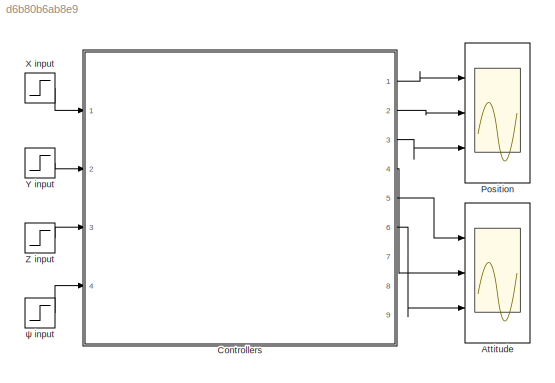
MODEL slx_d6b80b6ab8e9
KIND model
CONFIG AbsTol = auto
CONFIG EnableMultiTasking = off
CONFIG FixedStep = auto
CONFIG MaxStep = auto
CONFIG MinStep = auto
CONFIG RelTol = 1e-3
CONFIG SampleTimeConstraint = Unconstrained
CONFIG Solver = VariableStepAuto
CONFIG SolverName = VariableStepAuto
CONFIG StartTime = 0.0
CONFIG StopTime = 10.0
BLOCK [Scope]  Attitude
  Floating = off
  NumInputPorts = 3
  Ports = [3]
  ScopeSpecificationString = Simulink.scopes.TimeScopeBlockCfg('CurrentConfiguration', extmgr.ConfigurationSet(extmgr.Configuration('Core','General UI',true),extmgr.Configuration('Core','Source UI',true),extmgr.Configuration('Sources','WiredSimulink',true,'DataLoggingVariableName','ScopeData7'),extmgr.Configuration('Visuals','Time Domain',true,'PlotType','Line','SerializedDisplays',{struct('MinYLimReal','-0.0375','MaxYLimReal...<+1915ch>
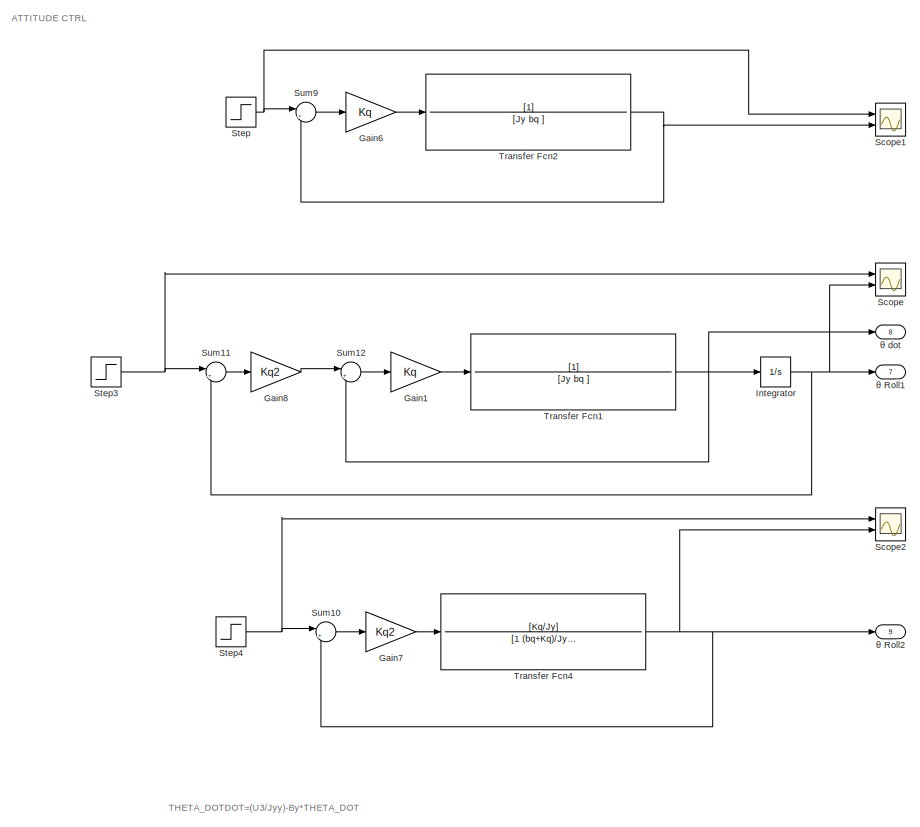
[diagram: Controllers - part 1/3, right side, full height]
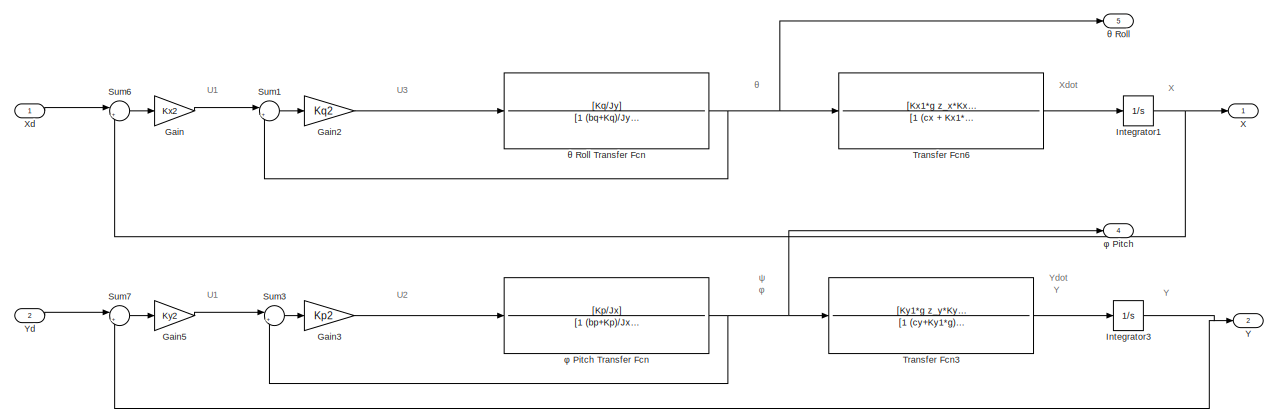
[diagram: Controllers - part 2/3, top left region]
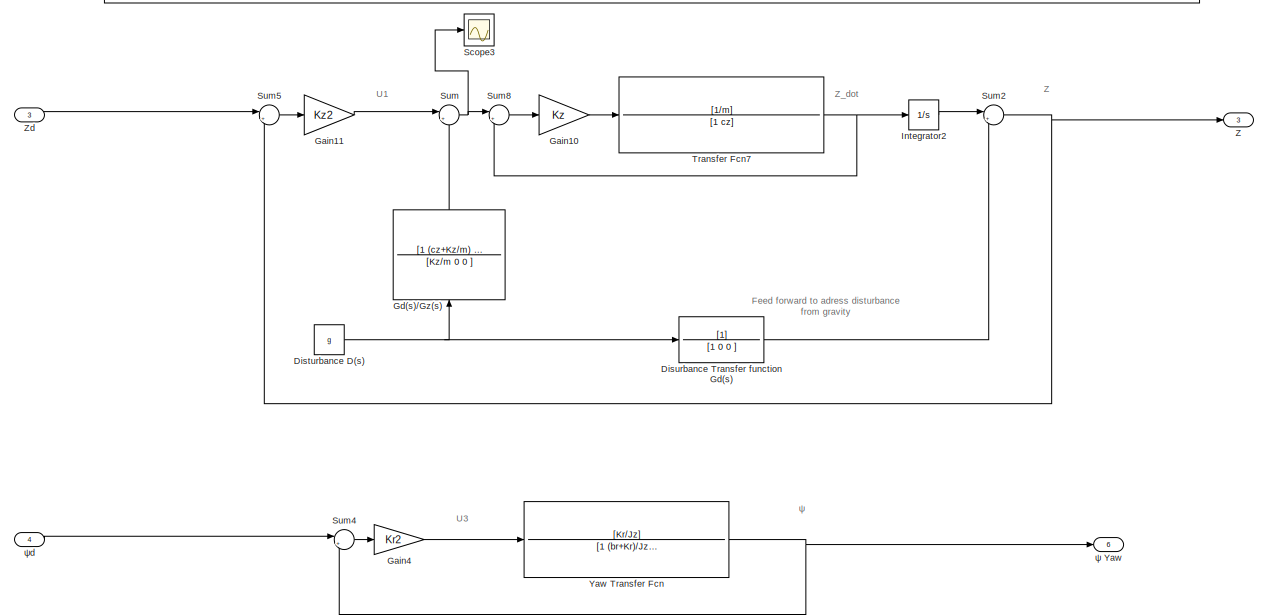
[diagram: Controllers - part 3/3, bottom left region]
BLOCK [SubSystem] Controllers
  Ports = [4, 9]
BLOCK [Constant] Controllers/Disturbance D(s)
  Value = g
BLOCK [TransferFcn] Controllers/Disurbance Transfer function Gd(s)
  Denominator = [1 0 0 ]
BLOCK [Gain] Controllers/Gain
  Gain = Kx2
BLOCK [Gain] Controllers/Gain1
  Gain = Kq
BLOCK [Gain] Controllers/Gain10
  Gain = Kz
BLOCK [Gain] Controllers/Gain11
  Gain = Kz2
BLOCK [Gain] Controllers/Gain2
  Gain = Kq2
BLOCK [Gain] Controllers/Gain3
  Gain = Kp2
BLOCK [Gain] Controllers/Gain4
  Gain = Kr2
BLOCK [Gain] Controllers/Gain5
  Gain = Ky2
BLOCK [Gain] Controllers/Gain6
  Gain = Kq
BLOCK [Gain] Controllers/Gain7
  Gain = Kq2
BLOCK [Gain] Controllers/Gain8
  Gain = Kq2
BLOCK [TransferFcn] Controllers/Gd(s)//Gz(s)
  Denominator = [Kz/m 0 0 ]
  NameLocation = right
  Numerator = [1 (cz+Kz/m) 0]
BLOCK [Integrator] Controllers/Integrator
  Ports = [1, 1]
BLOCK [Integrator] Controllers/Integrator1
  Ports = [1, 1]
BLOCK [Integrator] Controllers/Integrator2
  Ports = [1, 1]
BLOCK [Integrator] Controllers/Integrator3
  Ports = [1, 1]
BLOCK [Scope] Controllers/Scope
  Floating = off
  NumInputPorts = 2
  Ports = [2]
  ScopeSpecificationString = Simulink.scopes.TimeScopeBlockCfg('CurrentConfiguration', extmgr.ConfigurationSet(extmgr.Configuration('Core','General UI',true),extmgr.Configuration('Core','Source UI',true),extmgr.Configuration('Sources','WiredSimulink',true,'DataLoggingVariableName','ScopeData1'),extmgr.Configuration('Visuals','Time Domain',true,'SerializedDisplays',{struct('MinYLimReal','-0.125','MaxYLimReal','1.125','YLabelRe...<+1420ch>
BLOCK [Scope] Controllers/Scope1
  Floating = off
  NumInputPorts = 2
  Ports = [2]
  ScopeSpecificationString = Simulink.scopes.TimeScopeBlockCfg('CurrentConfiguration', extmgr.ConfigurationSet(extmgr.Configuration('Core','General UI',true),extmgr.Configuration('Core','Source UI',true),extmgr.Configuration('Sources','WiredSimulink',true,'DataLoggingVariableName','ScopeData2'),extmgr.Configuration('Visuals','Time Domain',true,'SerializedDisplays',{struct('MinYLimReal','-0.12512','MaxYLimReal','1.1261','YLabe...<+1442ch>
BLOCK [Scope] Controllers/Scope2
  Floating = off
  NumInputPorts = 2
  Ports = [2]
  ScopeSpecificationString = Simulink.scopes.TimeScopeBlockCfg('CurrentConfiguration', extmgr.ConfigurationSet(extmgr.Configuration('Core','General UI',true),extmgr.Configuration('Core','Source UI',true),extmgr.Configuration('Sources','WiredSimulink',true,'DataLoggingVariableName','ScopeData3'),extmgr.Configuration('Visuals','Time Domain',true,'SerializedDisplays',{struct('MinYLimReal','0.76862','MaxYLimReal','1.06624','YLabe...<+1437ch>
BLOCK [Scope] Controllers/Scope3
  Floating = off
  NumInputPorts = 1
  Ports = [1]
  ScopeSpecificationString = Simulink.scopes.TimeScopeBlockCfg('CurrentConfiguration', extmgr.ConfigurationSet(extmgr.Configuration('Core','General UI',true),extmgr.Configuration('Core','Source UI',true),extmgr.Configuration('Sources','WiredSimulink',true,'DataLoggingVariableName','ScopeData1'),extmgr.Configuration('Visuals','Time Domain',true,'SerializedDisplays',{struct('MinYLimReal','-112.03466','MaxYLimReal','11.57396','Y...<+1374ch>
BLOCK [Step] Controllers/Step
  SampleTime = 0
BLOCK [Step] Controllers/Step3
  SampleTime = 0
BLOCK [Step] Controllers/Step4
  After = 5
  SampleTime = 0
BLOCK [Sum] Controllers/Sum
  Inputs = |+-
  Ports = [2, 1]
BLOCK [Sum] Controllers/Sum1
  Inputs = |+-
  Ports = [2, 1]
BLOCK [Sum] Controllers/Sum10
  Inputs = |+-
  Ports = [2, 1]
BLOCK [Sum] Controllers/Sum11
  Inputs = |+-
  Ports = [2, 1]
BLOCK [Sum] Controllers/Sum12
  Inputs = |+-
  Ports = [2, 1]
BLOCK [Sum] Controllers/Sum2
  Inputs = |++
  Ports = [2, 1]
BLOCK [Sum] Controllers/Sum3
  Inputs = |+-
  Ports = [2, 1]
BLOCK [Sum] Controllers/Sum4
  Inputs = |+-
  Ports = [2, 1]
BLOCK [Sum] Controllers/Sum5
  Inputs = |+-
  Ports = [2, 1]
BLOCK [Sum] Controllers/Sum6
  Inputs = |+-
  Ports = [2, 1]
BLOCK [Sum] Controllers/Sum7
  Inputs = |+-
  Ports = [2, 1]
BLOCK [Sum] Controllers/Sum8
  Inputs = |+-
  Ports = [2, 1]
BLOCK [Sum] Controllers/Sum9
  Inputs = |+-
  Ports = [2, 1]
BLOCK [TransferFcn] Controllers/Transfer Fcn1
  Denominator = [Jy bq ]
BLOCK [TransferFcn] Controllers/Transfer Fcn2
  Denominator = [Jy bq ]
BLOCK [TransferFcn] Controllers/Transfer Fcn3
  Denominator = [1 (cy+Ky1*g) ]
  Numerator = [Ky1*g z_y*Ky1*g]
BLOCK [TransferFcn] Controllers/Transfer Fcn4
  Denominator = [1 (bq+Kq)/Jy 0 ]
  Numerator = [Kq/Jy]
BLOCK [TransferFcn] Controllers/Transfer Fcn6
  Denominator = [1 (cx + Kx1*g) ]
  Numerator = [Kx1*g z_x*Kx1*g]
BLOCK [TransferFcn] Controllers/Transfer Fcn7
  Denominator = [1 cz]
  Numerator = [1/m]
BLOCK [Outport] Controllers/X
BLOCK [Inport] Controllers/Xd
BLOCK [Outport] Controllers/Y
  Port = 2
BLOCK [TransferFcn] Controllers/Yaw Transfer Fcn 
  Denominator = [1 (br+Kr)/Jz 0 ]
  Numerator = [Kr/Jz]
BLOCK [Inport] Controllers/Yd
  Port = 2
BLOCK [Outport] Controllers/Z
  Port = 3
BLOCK [Inport] Controllers/Zd
  Port = 3
BLOCK [Outport] Controllers/θ Roll
  Port = 5
BLOCK [TransferFcn] Controllers/θ Roll Transfer Fcn
  Denominator = [1 (bq+Kq)/Jy 0 ]
  Numerator = [Kq/Jy]
BLOCK [Outport] Controllers/θ Roll1
  Port = 7
BLOCK [Outport] Controllers/θ Roll2
  Port = 9
BLOCK [Outport] Controllers/θ dot
  Port = 8
BLOCK [Outport] Controllers/φ Pitch
  Port = 4
BLOCK [TransferFcn] Controllers/φ Pitch Transfer Fcn
  Denominator = [1 (bp+Kp)/Jx 0 ]
  Numerator = [Kp/Jx]
BLOCK [Outport] Controllers/ψ Yaw
  Port = 6
BLOCK [Inport] Controllers/ψd
  Port = 4
BLOCK [Scope] Position 
  Floating = off
  NumInputPorts = 3
  Ports = [3]
  ScopeSpecificationString = Simulink.scopes.TimeScopeBlockCfg('CurrentConfiguration', extmgr.ConfigurationSet(extmgr.Configuration('Core','General UI',true),extmgr.Configuration('Core','Source UI',true),extmgr.Configuration('Sources','WiredSimulink',true,'DataLoggingVariableName','ScopeData6'),extmgr.Configuration('Visuals','Time Domain',true,'SerializedDisplays',{struct('MinYLimReal','-0.01283','MaxYLimReal','0.00501','YLab...<+1544ch>
BLOCK [Step] X input
  SampleTime = 0
BLOCK [Step] Y input
  After = 2
  SampleTime = 0
BLOCK [Step] Z input
  SampleTime = 0
BLOCK [Step] ψ input
  After = 0.15
  SampleTime = 0
  Time = 5
ANNOTATION Controllers: U1
ANNOTATION Controllers: U2
ANNOTATION Controllers: U3
ANNOTATION Controllers: Y
ANNOTATION Controllers: Z
ANNOTATION Controllers: Z_dot
ANNOTATION Controllers: ψ
ANNOTATION Controllers: X
ANNOTATION Controllers: Xdot
ANNOTATION Controllers: Ydot
ANNOTATION Controllers: θ
ANNOTATION Controllers: φ
ANNOTATION Controllers: THETA_DOTDOT=(U3/Jyy)-By*THETA_DOT
ANNOTATION Controllers: ATTITUDE CTRL
ANNOTATION Controllers: Feed forward to adress disturbance from gravity
NET Controllers/Disturbance D(s):1 -> Controllers/Disurbance Transfer function Gd(s):1, Controllers/Gd(s)//Gz(s):1
LINE Controllers/Disurbance Transfer function Gd(s):1 -> Controllers/Sum2:2
LINE Controllers/Gain10:1 -> Controllers/Transfer Fcn7:1
LINE Controllers/Gain11:1 -> Controllers/Sum:1
LINE Controllers/Gain1:1 -> Controllers/Transfer Fcn1:1
LINE Controllers/Gain2:1 -> Controllers/θ Roll Transfer Fcn:1
LINE Controllers/Gain3:1 -> Controllers/φ Pitch Transfer Fcn:1
LINE Controllers/Gain4:1 -> Controllers/Yaw Transfer Fcn :1
LINE Controllers/Gain5:1 -> Controllers/Sum3:1
LINE Controllers/Gain6:1 -> Controllers/Transfer Fcn2:1
LINE Controllers/Gain7:1 -> Controllers/Transfer Fcn4:1
LINE Controllers/Gain8:1 -> Controllers/Sum12:1
LINE Controllers/Gain:1 -> Controllers/Sum1:1
LINE Controllers/Gd(s)//Gz(s):1 -> Controllers/Sum:2
NET Controllers/Integrator1:1 -> Controllers/Sum6:2, Controllers/X:1
LINE Controllers/Integrator2:1 -> Controllers/Sum2:1
NET Controllers/Integrator3:1 -> Controllers/Sum7:2, Controllers/Y:1
NET Controllers/Integrator:1 -> Controllers/Scope:2, Controllers/Sum11:2, Controllers/θ Roll1:1
NET Controllers/Step3:1 -> Controllers/Scope:1, Controllers/Sum11:1
NET Controllers/Step4:1 -> Controllers/Scope2:1, Controllers/Sum10:1
NET Controllers/Step:1 -> Controllers/Scope1:1, Controllers/Sum9:1
LINE Controllers/Sum10:1 -> Controllers/Gain7:1
LINE Controllers/Sum11:1 -> Controllers/Gain8:1
LINE Controllers/Sum12:1 -> Controllers/Gain1:1
LINE Controllers/Sum1:1 -> Controllers/Gain2:1
NET Controllers/Sum2:1 -> Controllers/Sum5:2, Controllers/Z:1
LINE Controllers/Sum3:1 -> Controllers/Gain3:1
LINE Controllers/Sum4:1 -> Controllers/Gain4:1
LINE Controllers/Sum5:1 -> Controllers/Gain11:1
LINE Controllers/Sum6:1 -> Controllers/Gain:1
LINE Controllers/Sum7:1 -> Controllers/Gain5:1
LINE Controllers/Sum8:1 -> Controllers/Gain10:1
LINE Controllers/Sum9:1 -> Controllers/Gain6:1
NET Controllers/Sum:1 -> Controllers/Scope3:1, Controllers/Sum8:1
NET Controllers/Transfer Fcn1:1 -> Controllers/Integrator:1, Controllers/Sum12:2, Controllers/θ dot:1
NET Controllers/Transfer Fcn2:1 -> Controllers/Scope1:2, Controllers/Sum9:2
LINE Controllers/Transfer Fcn3:1 -> Controllers/Integrator3:1
NET Controllers/Transfer Fcn4:1 -> Controllers/Scope2:2, Controllers/Sum10:2, Controllers/θ Roll2:1
LINE Controllers/Transfer Fcn6:1 -> Controllers/Integrator1:1
NET Controllers/Transfer Fcn7:1 -> Controllers/Integrator2:1, Controllers/Sum8:2
LINE Controllers/Xd:1 -> Controllers/Sum6:1
NET Controllers/Yaw Transfer Fcn :1 -> Controllers/Sum4:2, Controllers/ψ Yaw:1
LINE Controllers/Yd:1 -> Controllers/Sum7:1
LINE Controllers/Zd:1 -> Controllers/Sum5:1
NET Controllers/θ Roll Transfer Fcn:1 -> Controllers/Sum1:2, Controllers/Transfer Fcn6:1, Controllers/θ Roll:1
NET Controllers/φ Pitch Transfer Fcn:1 -> Controllers/Sum3:2, Controllers/Transfer Fcn3:1, Controllers/φ Pitch:1
LINE Controllers/ψd:1 -> Controllers/Sum4:1
LINE Controllers:1 -> Position :1
LINE Controllers:2 -> Position :2
LINE Controllers:3 -> Position :3
LINE Controllers:4 ->  Attitude:2
LINE Controllers:5 ->  Attitude:1
LINE Controllers:6 ->  Attitude:3
LINE X input:1 -> Controllers:1
LINE Y input:1 -> Controllers:2
LINE Z input:1 -> Controllers:3
LINE ψ input:1 -> Controllers:4
note: NET lines group one-source signal fan-out (src -> all destinations, sorted); 1:1 wires keep LINE
